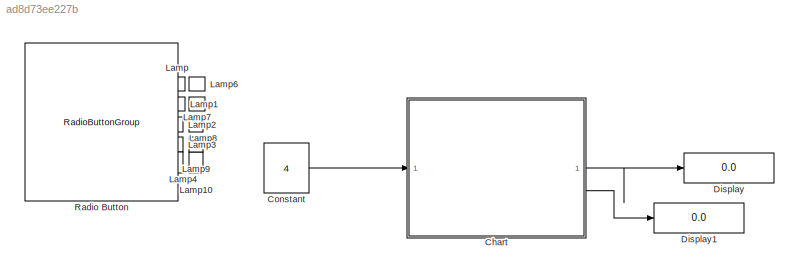
MODEL slx_ad8d73ee227b
KIND model
CONFIG AbsTol = auto
CONFIG EnableMultiTasking = off
CONFIG FixedStep = auto
CONFIG MaxStep = auto
CONFIG MinStep = auto
CONFIG RelTol = 1e-3
CONFIG SampleTimeConstraint = Unconstrained
CONFIG SolverName = VariableStepAuto
CONFIG StartTime = 0.0
CONFIG StopTime = 60
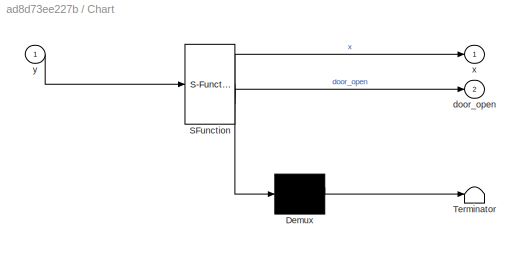
BLOCK [SubSystem] Chart
  ErrorFcn = Stateflow.Translate.translate
  PermitHierarchicalResolution = ExplicitOnly
  SFBlockType = Chart
  TreatAsAtomicUnit = on
BLOCK [Demux] Chart/ Demux 
  Outputs = 1
BLOCK [S-Function] Chart/ SFunction 
  EnableBusSupport = on
  FunctionName = sf_sfun
  PortCounts = [1 3]
  SFcnIsStateOwnerBlock = off
  SFunctionDeploymentMode = off
  Tag = Stateflow S-Function 3
BLOCK [Terminator] Chart/ Terminator 
BLOCK [Outport] Chart/door_open
  Port = 2
BLOCK [Outport] Chart/x
BLOCK [Inport] Chart/y
BLOCK [Constant] Constant
  Value = 4
BLOCK [Display] Display
  Decimation = 1
BLOCK [Display] Display1
  Decimation = 1
BLOCK [LampBlock] Lamp
  LabelPosition = Hide
BLOCK [LampBlock] Lamp1
  LabelPosition = Hide
BLOCK [LampBlock] Lamp10
  LabelPosition = Hide
BLOCK [LampBlock] Lamp2
  LabelPosition = Hide
BLOCK [LampBlock] Lamp3
  LabelPosition = Hide
BLOCK [LampBlock] Lamp4
  LabelPosition = Hide
BLOCK [LampBlock] Lamp6
  LabelPosition = Hide
BLOCK [LampBlock] Lamp7
  LabelPosition = Hide
BLOCK [LampBlock] Lamp8
  LabelPosition = Hide
BLOCK [LampBlock] Lamp9
  LabelPosition = Hide
BLOCK [RadioButtonGroup] Radio Button
  ButtonGroupName = ELEVATOR
  LabelPosition = Hide
  SelectedLabel = FOURTH_FLOOR
LINE Chart:1 -> Display:1
LINE Chart:2 -> Display1:1
LINE Constant:1 -> Chart:1
CHART Chart states=15 transitions=36
  STATE_LABEL 'F_3\nx=3;'
  STATE_LABEL 'closed_1\ndoor_open =0;\n'
  STATE_LABEL 'open_1\ndoor_open =1;'
  STATE_LABEL '[x~=3]{after(10,sec)}'
  STATE_LABEL '[x==3]{after(10,sec)}'
  STATE_LABEL 'closed_1\ndoor_open =0;\n'
  STATE_LABEL 'open_1\ndoor_open =1;'
  STATE_LABEL 'F_1\nx=1;'
  STATE_LABEL 'closed_1\ndoor_open =0;\n'
  STATE_LABEL 'open_1\ndoor_open =1;'
  STATE_LABEL '[x~=1]{after(10,sec)}'
  STATE_LABEL '[x==1]{after(10,sec)}'
  STATE_LABEL 'closed_1\ndoor_open =0;\n'
  STATE_LABEL 'open_1\ndoor_open =1;'
  STATE_LABEL 'F_0\nx=0;'
  STATE_LABEL 'closed_1\ndoor_open =0;\n'
  STATE_LABEL 'open_1\ndoor_open =1;'
  STATE_LABEL '[x~=0]{after(10,sec)}'
  STATE_LABEL '[x==0]{after(10,sec)}'
  STATE_LABEL 'closed_1\ndoor_open =0;\n'
  STATE_LABEL 'open_1\ndoor_open =1;'
  STATE_LABEL 'F_4\nx=4;'
  STATE_LABEL 'closed_1\ndoor_open =0;\n'
  STATE_LABEL 'open_1\ndoor_open =1;'
  STATE_LABEL '[x~=4]{after(10,sec)}'
  STATE_LABEL '[x==4]{after(10,sec)}'
  STATE_LABEL 'closed_1\ndoor_open =0;\n'
  STATE_LABEL 'open_1\ndoor_open =1;'
  STATE_LABEL 'F_2\nx=2;'
  STATE_LABEL 'closed_1\ndoor_open =0;\n'
  STATE_LABEL 'open_1\ndoor_open =1;'
  STATE_LABEL '[x~=2]{after(10,sec)}'
  STATE_LABEL '[x==2]{after(10,sec)}'
  STATE_LABEL 'closed_1\ndoor_open =0;\n'
  STATE_LABEL 'open_1\ndoor_open =1;'
CHART  states=0 transitions=0
